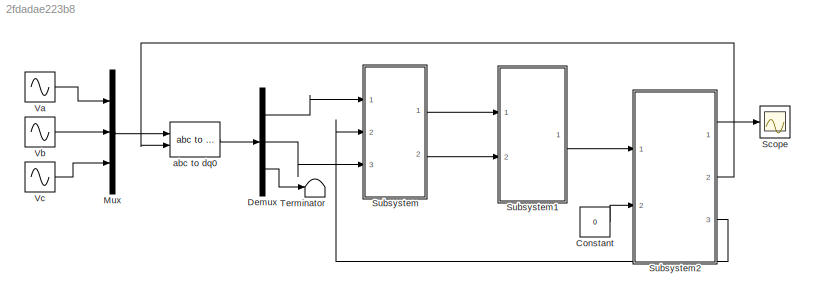
MODEL slx_2fdadae223b8
KIND model
CONFIG AbsTol = auto
CONFIG EnableMultiTasking = off
CONFIG FixedStep = auto
CONFIG MaxStep = 1e-4
CONFIG MinStep = 1e-5
CONFIG RelTol = 1e-3
CONFIG SampleTimeConstraint = Unconstrained
CONFIG Solver = VariableStepAuto
CONFIG SolverName = VariableStepAuto
CONFIG StartTime = 0.0
CONFIG StopTime = 0.1
BLOCK [Constant] Constant
  Value = 0
BLOCK [Demux] Demux
  Outputs = 3
  Ports = [1, 3]
BLOCK [Mux] Mux
  DisplayOption = bar
  Inputs = 3
  Ports = [3, 1]
BLOCK [Scope] Scope
  Floating = off
  NumInputPorts = 1
  Ports = [1]
  ScopeSpecificationString = Simulink.scopes.TimeScopeBlockCfg('CurrentConfiguration', extmgr.ConfigurationSet(extmgr.Configuration('Core','General UI',true),extmgr.Configuration('Core','Source UI',true),extmgr.Configuration('Sources','WiredSimulink',true),extmgr.Configuration('Visuals','Time Domain',true,'SerializedDisplays',{struct('MinYLimReal','-22.07525','MaxYLimReal','198.67726','YLabelReal','','MinYLimMag','0.00000','M...<+1475ch>
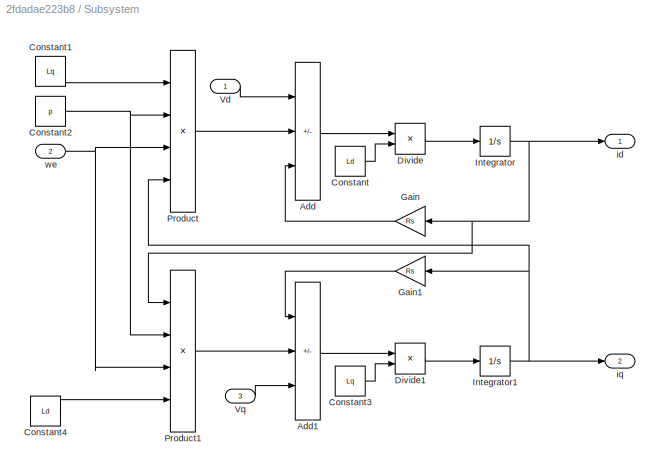
BLOCK [SubSystem] Subsystem
  Ports = [3, 2]
BLOCK [Sum] Subsystem/Add
  IconShape = rectangular
  Inputs = ++-
  Ports = [3, 1]
BLOCK [Sum] Subsystem/Add1
  IconShape = rectangular
  Inputs = --+
  Ports = [3, 1]
BLOCK [Constant] Subsystem/Constant
  Value = Ld
BLOCK [Constant] Subsystem/Constant1
  Value = Lq
BLOCK [Constant] Subsystem/Constant2
  Value = p
BLOCK [Constant] Subsystem/Constant3
  Value = Lq
BLOCK [Constant] Subsystem/Constant4
  Value = Ld
BLOCK [Product] Subsystem/Divide
  Inputs = */
  Ports = [2, 1]
BLOCK [Product] Subsystem/Divide1
  Inputs = */
  Ports = [2, 1]
BLOCK [Gain] Subsystem/Gain
  Gain = Rs
BLOCK [Gain] Subsystem/Gain1
  Gain = Rs
BLOCK [Integrator] Subsystem/Integrator
  Ports = [1, 1]
BLOCK [Integrator] Subsystem/Integrator1
  Ports = [1, 1]
BLOCK [Product] Subsystem/Product
  Inputs = 4
  Ports = [4, 1]
BLOCK [Product] Subsystem/Product1
  Inputs = 4
  Ports = [4, 1]
BLOCK [Inport] Subsystem/Vd
BLOCK [Inport] Subsystem/Vq
  Port = 3
BLOCK [Outport] Subsystem/id
BLOCK [Outport] Subsystem/iq
  Port = 2
BLOCK [Inport] Subsystem/we
  Port = 2
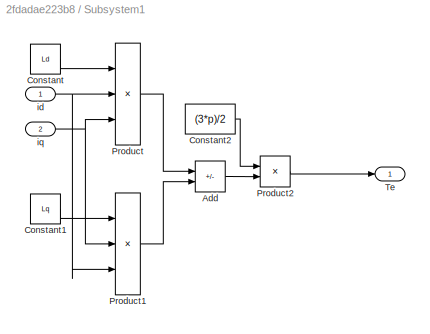
BLOCK [SubSystem] Subsystem1
  Ports = [2, 1]
BLOCK [Sum] Subsystem1/Add
  IconShape = rectangular
  Inputs = +-
  Ports = [2, 1]
BLOCK [Constant] Subsystem1/Constant
  Value = Ld
BLOCK [Constant] Subsystem1/Constant1
  Value = Lq
BLOCK [Constant] Subsystem1/Constant2
  Value = (3*p)/2
BLOCK [Product] Subsystem1/Product
  Inputs = 3
  Ports = [3, 1]
BLOCK [Product] Subsystem1/Product1
  Inputs = 3
  Ports = [3, 1]
BLOCK [Product] Subsystem1/Product2
  Ports = [2, 1]
BLOCK [Outport] Subsystem1/Te
BLOCK [Inport] Subsystem1/id
BLOCK [Inport] Subsystem1/iq
  Port = 2
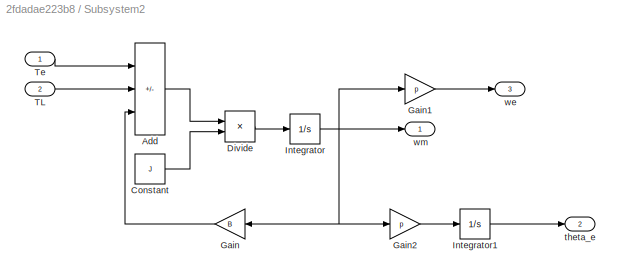
BLOCK [SubSystem] Subsystem2
  Ports = [2, 3]
BLOCK [Sum] Subsystem2/Add
  IconShape = rectangular
  Inputs = +--
  Ports = [3, 1]
BLOCK [Constant] Subsystem2/Constant
  Value = J
BLOCK [Product] Subsystem2/Divide
  Inputs = */
  Ports = [2, 1]
BLOCK [Gain] Subsystem2/Gain
  Gain = B
BLOCK [Gain] Subsystem2/Gain1
  Gain = p
BLOCK [Gain] Subsystem2/Gain2
  Gain = p
BLOCK [Integrator] Subsystem2/Integrator
  Ports = [1, 1]
BLOCK [Integrator] Subsystem2/Integrator1
  Ports = [1, 1]
BLOCK [Inport] Subsystem2/TL
  Port = 2
BLOCK [Inport] Subsystem2/Te
BLOCK [Outport] Subsystem2/theta_e
  Port = 2
BLOCK [Outport] Subsystem2/we
  Port = 3
BLOCK [Outport] Subsystem2/wm
BLOCK [Terminator] Terminator
BLOCK [Sin] Va
  Amplitude = 240
  Frequency = 2*pi*50
  Ports = [0, 1]
  SampleTime = 0
BLOCK [Sin] Vb
  Amplitude = 240
  Frequency = 2*pi*50
  Phase = -2*pi/3
  Ports = [0, 1]
  SampleTime = 0
BLOCK [Sin] Vc
  Amplitude = 240
  Frequency = 2*pi*50
  Phase = 2*pi/3
  Ports = [0, 1]
  SampleTime = 0
BLOCK [Reference] abc to dq0  REF=powerlib_meascontrol/Transformations/abc to dq0
  Ports = [2, 1]
  SourceBlock = powerlib_meascontrol/Transformations/abc to dq0
  SourceType = abc to dq0 Transformation
LINE Constant:1 -> Subsystem2:2
LINE Demux:1 -> Subsystem:1
LINE Demux:2 -> Subsystem:3
LINE Demux:3 -> Terminator:1
LINE Mux:1 -> abc to dq0:1
LINE Subsystem/Add1:1 -> Subsystem/Divide1:1
LINE Subsystem/Add:1 -> Subsystem/Divide:1
LINE Subsystem/Constant1:1 -> Subsystem/Product:1
NET Subsystem/Constant2:1 -> Subsystem/Product1:2, Subsystem/Product:2
LINE Subsystem/Constant3:1 -> Subsystem/Divide1:2
LINE Subsystem/Constant4:1 -> Subsystem/Product1:4
LINE Subsystem/Constant:1 -> Subsystem/Divide:2
LINE Subsystem/Divide1:1 -> Subsystem/Integrator1:1
LINE Subsystem/Divide:1 -> Subsystem/Integrator:1
LINE Subsystem/Gain1:1 -> Subsystem/Add1:1
LINE Subsystem/Gain:1 -> Subsystem/Add:3
NET Subsystem/Integrator1:1 -> Subsystem/Gain1:1, Subsystem/Product:4, Subsystem/iq:1
NET Subsystem/Integrator:1 -> Subsystem/Gain:1, Subsystem/Product1:1, Subsystem/id:1
LINE Subsystem/Product1:1 -> Subsystem/Add1:2
LINE Subsystem/Product:1 -> Subsystem/Add:2
LINE Subsystem/Vd:1 -> Subsystem/Add:1
LINE Subsystem/Vq:1 -> Subsystem/Add1:3
NET Subsystem/we:1 -> Subsystem/Product1:3, Subsystem/Product:3
LINE Subsystem1/Add:1 -> Subsystem1/Product2:2
LINE Subsystem1/Constant1:1 -> Subsystem1/Product1:1
LINE Subsystem1/Constant2:1 -> Subsystem1/Product2:1
LINE Subsystem1/Constant:1 -> Subsystem1/Product:1
LINE Subsystem1/Product1:1 -> Subsystem1/Add:2
LINE Subsystem1/Product2:1 -> Subsystem1/Te:1
LINE Subsystem1/Product:1 -> Subsystem1/Add:1
NET Subsystem1/id:1 -> Subsystem1/Product1:3, Subsystem1/Product:2
NET Subsystem1/iq:1 -> Subsystem1/Product1:2, Subsystem1/Product:3
LINE Subsystem1:1 -> Subsystem2:1
LINE Subsystem2/Add:1 -> Subsystem2/Divide:1
LINE Subsystem2/Constant:1 -> Subsystem2/Divide:2
LINE Subsystem2/Divide:1 -> Subsystem2/Integrator:1
LINE Subsystem2/Gain1:1 -> Subsystem2/we:1
LINE Subsystem2/Gain2:1 -> Subsystem2/Integrator1:1
LINE Subsystem2/Gain:1 -> Subsystem2/Add:3
LINE Subsystem2/Integrator1:1 -> Subsystem2/theta_e:1
NET Subsystem2/Integrator:1 -> Subsystem2/Gain1:1, Subsystem2/Gain2:1, Subsystem2/Gain:1, Subsystem2/wm:1
LINE Subsystem2/TL:1 -> Subsystem2/Add:2
LINE Subsystem2/Te:1 -> Subsystem2/Add:1
LINE Subsystem2:1 -> Scope:1
LINE Subsystem2:2 -> abc to dq0:2
LINE Subsystem2:3 -> Subsystem:2
LINE Subsystem:1 -> Subsystem1:1
LINE Subsystem:2 -> Subsystem1:2
LINE Va:1 -> Mux:1
LINE Vb:1 -> Mux:2
LINE Vc:1 -> Mux:3
LINE abc to dq0:1 -> Demux:1
note: NET lines group one-source signal fan-out (src -> all destinations, sorted); 1:1 wires keep LINE
